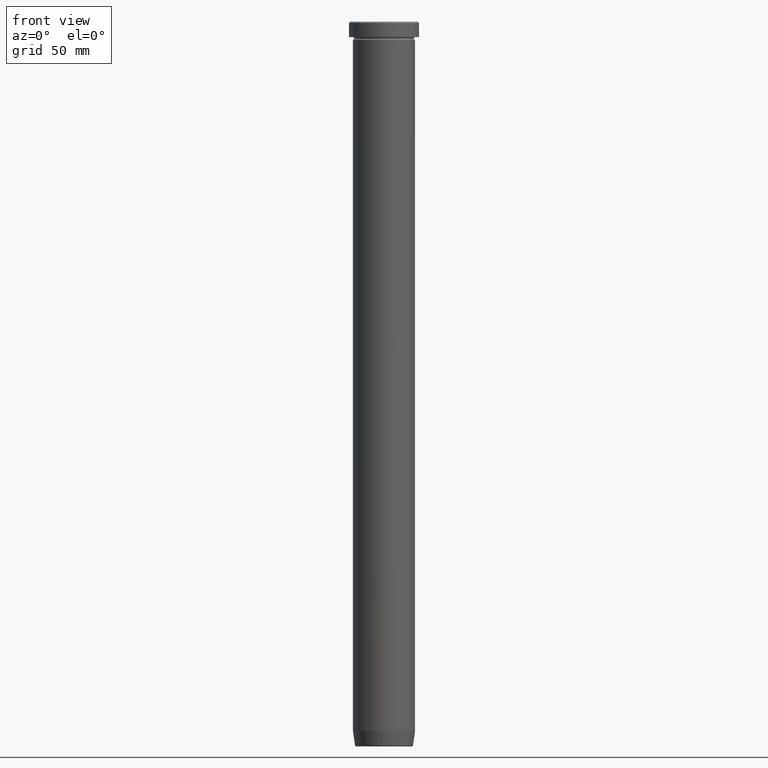
[diagram: clean part render]
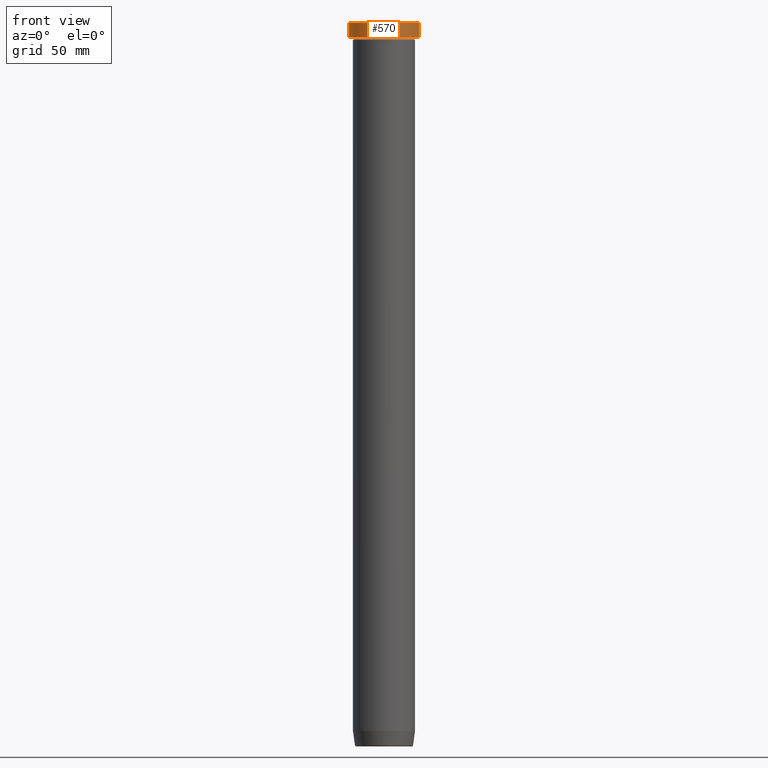
[diagram: same view with one face highlighted and labeled with its STEP entity id]
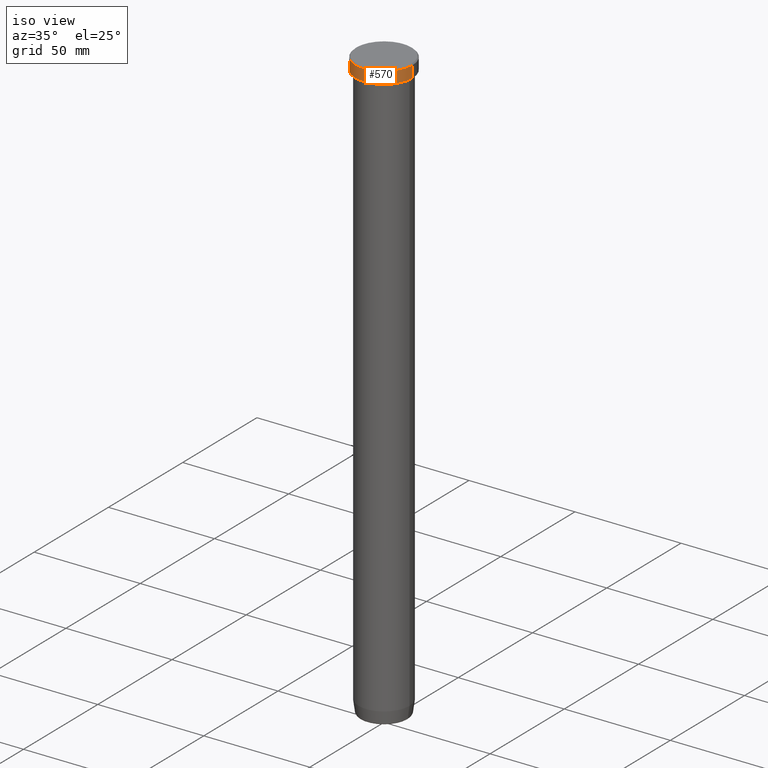
[diagram: same view with one face highlighted and labeled with its STEP entity id]
A machine part, front view. The second image highlights one B-rep face of the part: STEP entity #570.
A second angle (iso view) of the same face is appended — the face is thin or edge-on in the first view.
In plain terms, the highlighted cylindrical surface (edge-blend (fillet) strip) has radius 13.5 mm, axis along (-0, -0, 1).
Its self-contained STEP definition (entity closure, byte-faithful):
#3 = DIRECTION ( 'NONE',  ( -0.000000000000000000, -0.000000000000000000, 1.000000000000000000 ) ) ;
#4 = AXIS2_PLACEMENT_3D ( 'NONE', #432, #14, #202 ) ;
#7 = ORIENTED_EDGE ( 'NONE', *, *, #90, .T. ) ;
#14 = DIRECTION ( 'NONE',  ( -0.000000000000000000, -0.000000000000000000, 1.000000000000000000 ) ) ;
#29 = EDGE_LOOP ( 'NONE', ( #346, #571, #7, #289 ) ) ;
#55 = EDGE_CURVE ( 'NONE', #379, #306, #336, .T. ) ;
#61 = CARTESIAN_POINT ( 'NONE',  ( 13.50000000000000000, 0.000000000000000000, 0.000000000000000000 ) ) ;
#68 = DIRECTION ( 'NONE',  ( -0.000000000000000000, -0.000000000000000000, 1.000000000000000000 ) ) ;
#71 = VERTEX_POINT ( 'NONE', #556 ) ;
#75 = CARTESIAN_POINT ( 'NONE',  ( 13.50000000000000000, 0.000000000000000000, -0.5000000000000091038 ) ) ;
#90 = EDGE_CURVE ( 'NONE', #124, #379, #521, .T. ) ;
#124 = VERTEX_POINT ( 'NONE', #488 ) ;
#202 = DIRECTION ( 'NONE',  ( 1.000000000000000000, 0.000000000000000000, 0.000000000000000000 ) ) ;
#276 = CARTESIAN_POINT ( 'NONE',  ( -13.50000000000000000, 1.653273178848926867E-15, -0.5000000000000091038 ) ) ;
#289 = ORIENTED_EDGE ( 'NONE', *, *, #55, .T. ) ;
#291 = CYLINDRICAL_SURFACE ( 'NONE', #4, 13.50000000000000000 ) ;
#306 = VERTEX_POINT ( 'NONE', #276 ) ;
#336 = CIRCLE ( 'NONE', #539, 13.50000000000000000 ) ;
#346 = ORIENTED_EDGE ( 'NONE', *, *, #438, .F. ) ;
#369 = CARTESIAN_POINT ( 'NONE',  ( 0.000000000000000000, 0.000000000000000000, -5.999999999999999112 ) ) ;
#379 = VERTEX_POINT ( 'NONE', #75 ) ;
#385 = DIRECTION ( 'NONE',  ( 1.000000000000000000, 0.000000000000000000, 0.000000000000000000 ) ) ;
#386 = CARTESIAN_POINT ( 'NONE',  ( -13.50000000000000000, 1.653273178848926867E-15, 0.000000000000000000 ) ) ;
#421 = DIRECTION ( 'NONE',  ( -0.000000000000000000, -0.000000000000000000, 1.000000000000000000 ) ) ;
#430 = EDGE_CURVE ( 'NONE', #71, #124, #505, .T. ) ;
#431 = CARTESIAN_POINT ( 'NONE',  ( 0.000000000000000000, 0.000000000000000000, -0.5000000000000091038 ) ) ;
#432 = CARTESIAN_POINT ( 'NONE',  ( 0.000000000000000000, 0.000000000000000000, 0.000000000000000000 ) ) ;
#438 = EDGE_CURVE ( 'NONE', #71, #306, #569, .T. ) ;
#468 = VECTOR ( 'NONE', #68, 1000.000000000000000 ) ;
#473 = FACE_OUTER_BOUND ( 'NONE', #29, .T. ) ;
#488 = CARTESIAN_POINT ( 'NONE',  ( 13.50000000000000000, 0.000000000000000000, -5.999999999999999112 ) ) ;
#505 = CIRCLE ( 'NONE', #591, 13.50000000000000000 ) ;
#508 = DIRECTION ( 'NONE',  ( 1.000000000000000000, 0.000000000000000000, 0.000000000000000000 ) ) ;
#518 = DIRECTION ( 'NONE',  ( 0.000000000000000000, 0.000000000000000000, -1.000000000000000000 ) ) ;
#521 = LINE ( 'NONE', #61, #468 ) ;
#539 = AXIS2_PLACEMENT_3D ( 'NONE', #431, #518, #385 ) ;
#556 = CARTESIAN_POINT ( 'NONE',  ( -13.50000000000000000, 1.653273178848926867E-15, -5.999999999999999112 ) ) ;
#559 = VECTOR ( 'NONE', #421, 1000.000000000000000 ) ;
#569 = LINE ( 'NONE', #386, #559 ) ;
#570 = ADVANCED_FACE ( 'NONE', ( #473 ), #291, .T. ) ;
#571 = ORIENTED_EDGE ( 'NONE', *, *, #430, .T. ) ;
#591 = AXIS2_PLACEMENT_3D ( 'NONE', #369, #3, #508 ) ;